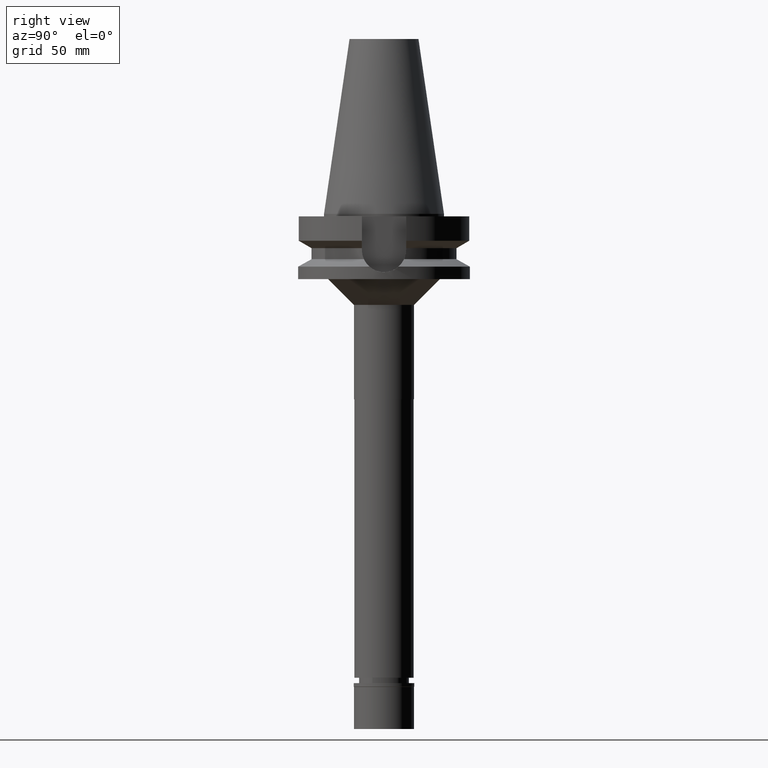
[diagram: clean part render]
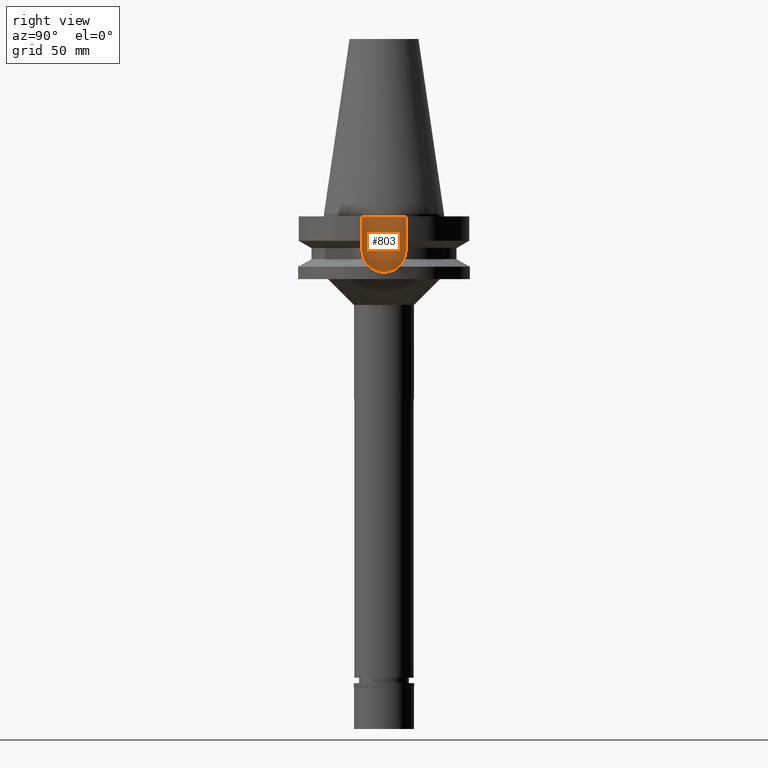
[diagram: same view with one face highlighted and labeled with its STEP entity id]
A machine part, right view. The second image highlights one B-rep face of the part: STEP entity #803.
In plain terms, the highlighted planar face has unit normal (1, 0, 0).
Its self-contained STEP definition (entity closure, byte-faithful):
#105 = CARTESIAN_POINT ( 'NONE',  ( 35.39999999999999858, 0.0000000000000000000, -21.14999999999999858 ) ) ;
#120 = CIRCLE ( 'NONE', #2525, 12.84999999999999964 ) ;
#210 = DIRECTION ( 'NONE',  ( 0.0000000000000000000, 1.000000000000000000, 0.0000000000000000000 ) ) ;
#213 = EDGE_CURVE ( 'NONE', #864, #1098, #791, .T. ) ;
#275 = VERTEX_POINT ( 'NONE', #321 ) ;
#280 = DIRECTION ( 'NONE',  ( 0.0000000000000000000, -1.000000000000000000, 0.0000000000000000000 ) ) ;
#321 = CARTESIAN_POINT ( 'NONE',  ( 35.39999999999999858, 12.84999999999999964, -21.14999999999999858 ) ) ;
#466 = EDGE_CURVE ( 'NONE', #275, #1435, #120, .T. ) ;
#525 = DIRECTION ( 'NONE',  ( -1.000000000000000000, 0.0000000000000000000, 0.0000000000000000000 ) ) ;
#590 = AXIS2_PLACEMENT_3D ( 'NONE', #2678, #1410, #210 ) ;
#652 = PLANE ( 'NONE',  #590 ) ;
#682 = FACE_OUTER_BOUND ( 'NONE', #720, .T. ) ;
#720 = EDGE_LOOP ( 'NONE', ( #3186, #2980, #3091, #1679 ) ) ;
#791 = LINE ( 'NONE', #834, #2476 ) ;
#803 = ADVANCED_FACE ( 'NONE', ( #682 ), #652, .T. ) ;
#834 = CARTESIAN_POINT ( 'NONE',  ( 35.39999999999999858, 12.84999999999999964, -1.500000000000000000 ) ) ;
#864 = VERTEX_POINT ( 'NONE', #3158 ) ;
#895 = VECTOR ( 'NONE', #2391, 1000.000000000000000 ) ;
#1009 = LINE ( 'NONE', #1734, #1647 ) ;
#1098 = VERTEX_POINT ( 'NONE', #1478 ) ;
#1109 = EDGE_CURVE ( 'NONE', #1435, #1098, #1009, .T. ) ;
#1398 = LINE ( 'NONE', #2861, #895 ) ;
#1410 = DIRECTION ( 'NONE',  ( 1.000000000000000000, 0.0000000000000000000, 0.0000000000000000000 ) ) ;
#1435 = VERTEX_POINT ( 'NONE', #2080 ) ;
#1478 = CARTESIAN_POINT ( 'NONE',  ( 35.39999999999999858, -12.84999999999999964, -1.500000000000000000 ) ) ;
#1647 = VECTOR ( 'NONE', #1771, 1000.000000000000000 ) ;
#1679 = ORIENTED_EDGE ( 'NONE', *, *, #213, .T. ) ;
#1734 = CARTESIAN_POINT ( 'NONE',  ( 35.39999999999999858, -12.84999999999999964, -21.14999999999999858 ) ) ;
#1771 = DIRECTION ( 'NONE',  ( 0.0000000000000000000, 0.0000000000000000000, 1.000000000000000000 ) ) ;
#2014 = EDGE_CURVE ( 'NONE', #864, #275, #1398, .T. ) ;
#2080 = CARTESIAN_POINT ( 'NONE',  ( 35.39999999999999858, -12.84999999999999964, -21.14999999999999858 ) ) ;
#2391 = DIRECTION ( 'NONE',  ( 0.0000000000000000000, 0.0000000000000000000, -1.000000000000000000 ) ) ;
#2476 = VECTOR ( 'NONE', #280, 1000.000000000000000 ) ;
#2525 = AXIS2_PLACEMENT_3D ( 'NONE', #105, #525, #2561 ) ;
#2561 = DIRECTION ( 'NONE',  ( 0.0000000000000000000, 1.000000000000000000, 0.0000000000000000000 ) ) ;
#2678 = CARTESIAN_POINT ( 'NONE',  ( 35.39999999999999858, 0.0000000000000000000, 0.0000000000000000000 ) ) ;
#2861 = CARTESIAN_POINT ( 'NONE',  ( 35.39999999999999858, 12.84999999999999964, -1.500000000000000000 ) ) ;
#2980 = ORIENTED_EDGE ( 'NONE', *, *, #466, .F. ) ;
#3091 = ORIENTED_EDGE ( 'NONE', *, *, #2014, .F. ) ;
#3158 = CARTESIAN_POINT ( 'NONE',  ( 35.39999999999999858, 12.84999999999999964, -1.500000000000000000 ) ) ;
#3186 = ORIENTED_EDGE ( 'NONE', *, *, #1109, .F. ) ;